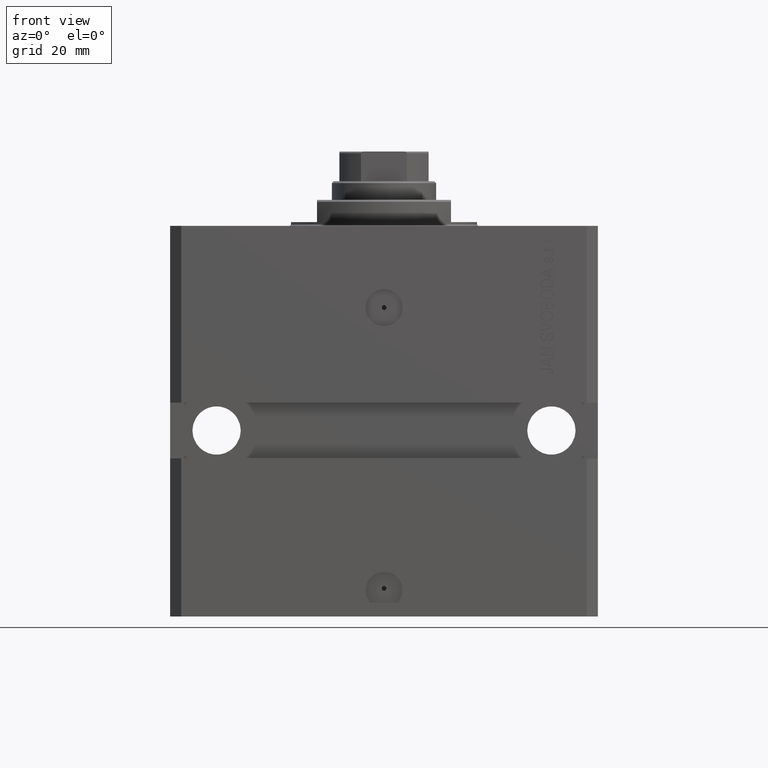
[diagram: clean part render]
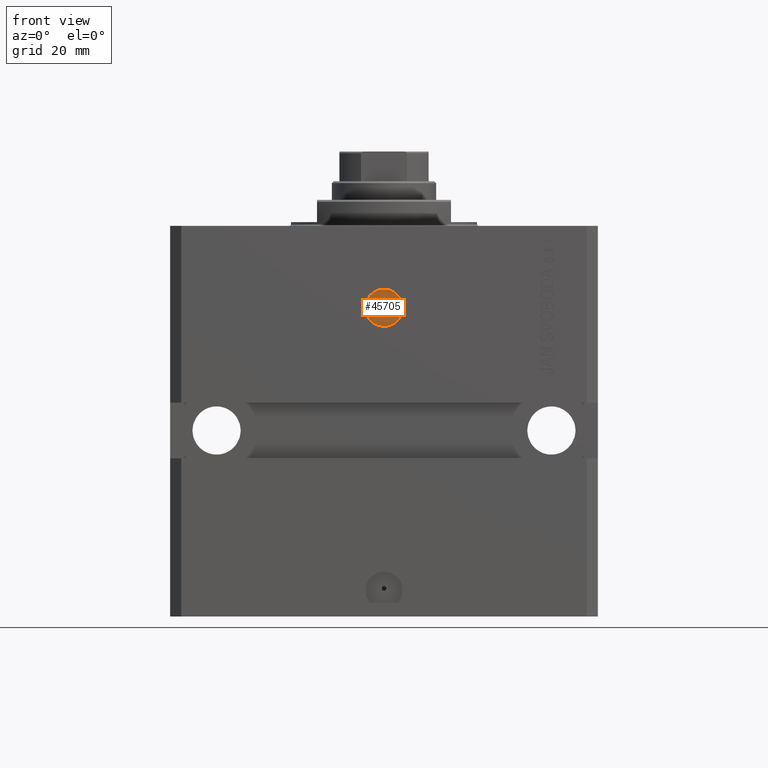
[diagram: same view with one face highlighted and labeled with its STEP entity id]
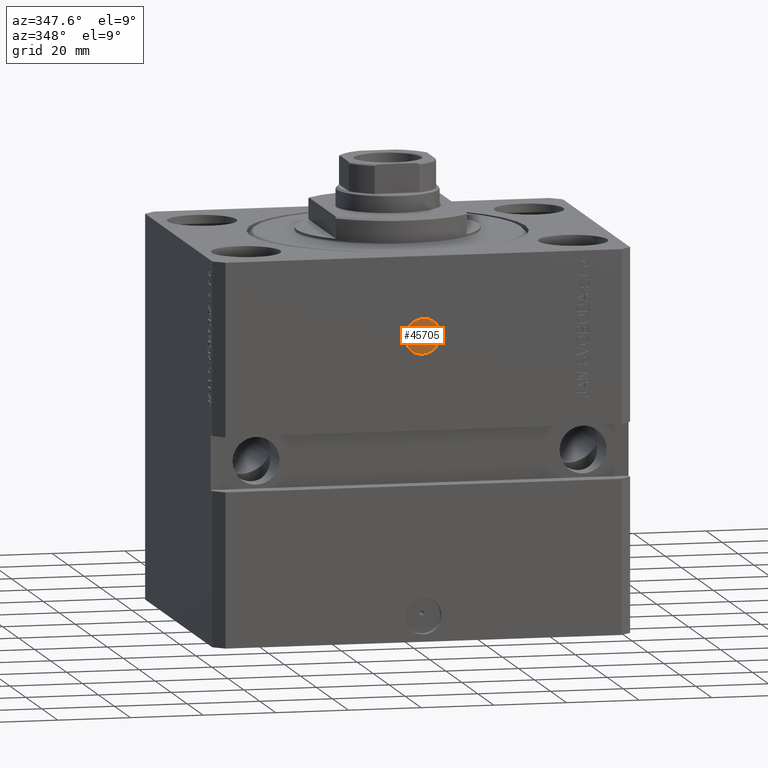
[diagram: same view with one face highlighted and labeled with its STEP entity id]
A machine part, front view. The second image highlights one B-rep face of the part: STEP entity #45705.
A second angle (auxiliary view) of the same face is appended — the face is thin or edge-on in the first view.
In plain terms, the highlighted planar face has unit normal (0, -1, 0).
Its self-contained STEP definition (entity closure, byte-faithful):
#1402 = DIRECTION ( 'NONE',  ( 1.176083712526788232E-16, -1.000000000000000000, 0.000000000000000000 ) ) ;
#1594 = DIRECTION ( 'NONE',  ( 1.176083712526788232E-16, -1.000000000000000000, 0.000000000000000000 ) ) ;
#1609 = AXIS2_PLACEMENT_3D ( 'NONE', #1888, #1402, #31939 ) ;
#1888 = CARTESIAN_POINT ( 'NONE',  ( 5.505906033625877163E-15, -43.09999999999999432, -22.00000000000000000 ) ) ;
#2262 = CIRCLE ( 'NONE', #6187, 0.6250000000000002220 ) ;
#2329 = EDGE_CURVE ( 'NONE', #5010, #3658, #3595, .T. ) ;
#2336 = FACE_BOUND ( 'NONE', #23830, .T. ) ;
#3595 = CIRCLE ( 'NONE', #29556, 5.000000000000002665 ) ;
#3658 = VERTEX_POINT ( 'NONE', #30618 ) ;
#5010 = VERTEX_POINT ( 'NONE', #14760 ) ;
#5768 = DIRECTION ( 'NONE',  ( 1.000000000000000000, 1.176083712526788232E-16, 0.000000000000000000 ) ) ;
#6187 = AXIS2_PLACEMENT_3D ( 'NONE', #29451, #9507, #32656 ) ;
#7343 = VERTEX_POINT ( 'NONE', #31973 ) ;
#7820 = ORIENTED_EDGE ( 'NONE', *, *, #2329, .T. ) ;
#9352 = AXIS2_PLACEMENT_3D ( 'NONE', #13529, #47491, #32485 ) ;
#9507 = DIRECTION ( 'NONE',  ( 1.176083712526788232E-16, -1.000000000000000000, 0.000000000000000000 ) ) ;
#13004 = DIRECTION ( 'NONE',  ( 1.176083712526788232E-16, -1.000000000000000000, 0.000000000000000000 ) ) ;
#13067 = EDGE_CURVE ( 'NONE', #7343, #21732, #2262, .T. ) ;
#13529 = CARTESIAN_POINT ( 'NONE',  ( 5.068920800990455287E-15, -43.09999999999999432, -22.00000000000000000 ) ) ;
#13685 = EDGE_CURVE ( 'NONE', #21732, #7343, #30605, .T. ) ;
#14760 = CARTESIAN_POINT ( 'NONE',  ( -4.999999999999997335, -43.09999999999999432, -22.00000000000000000 ) ) ;
#20935 = EDGE_CURVE ( 'NONE', #3658, #5010, #44094, .T. ) ;
#21732 = VERTEX_POINT ( 'NONE', #22626 ) ;
#22626 = CARTESIAN_POINT ( 'NONE',  ( -0.6249999999999951150, -43.09999999999999432, -22.00000000000000000 ) ) ;
#23830 = EDGE_LOOP ( 'NONE', ( #39677, #39962 ) ) ;
#24404 = ORIENTED_EDGE ( 'NONE', *, *, #20935, .T. ) ;
#24990 = PLANE ( 'NONE',  #25974 ) ;
#25974 = AXIS2_PLACEMENT_3D ( 'NONE', #31399, #1594, #5768 ) ;
#29451 = CARTESIAN_POINT ( 'NONE',  ( 5.068920800990455287E-15, -43.09999999999999432, -22.00000000000000000 ) ) ;
#29556 = AXIS2_PLACEMENT_3D ( 'NONE', #31717, #13004, #36144 ) ;
#30605 = CIRCLE ( 'NONE', #9352, 0.6250000000000002220 ) ;
#30618 = CARTESIAN_POINT ( 'NONE',  ( 5.000000000000007994, -43.09999999999999432, -22.00000000000000000 ) ) ;
#31399 = CARTESIAN_POINT ( 'NONE',  ( 5.505906033625877163E-15, -43.09999999999999432, -22.00000000000000000 ) ) ;
#31717 = CARTESIAN_POINT ( 'NONE',  ( 5.505906033625877163E-15, -43.09999999999999432, -22.00000000000000000 ) ) ;
#31939 = DIRECTION ( 'NONE',  ( 1.000000000000000000, 0.000000000000000000, 0.000000000000000000 ) ) ;
#31973 = CARTESIAN_POINT ( 'NONE',  ( 0.6250000000000053291, -43.09999999999999432, -22.00000000000000000 ) ) ;
#32138 = FACE_OUTER_BOUND ( 'NONE', #34893, .T. ) ;
#32485 = DIRECTION ( 'NONE',  ( 1.000000000000000000, 0.000000000000000000, 0.000000000000000000 ) ) ;
#32656 = DIRECTION ( 'NONE',  ( 1.000000000000000000, 0.000000000000000000, 0.000000000000000000 ) ) ;
#34893 = EDGE_LOOP ( 'NONE', ( #24404, #7820 ) ) ;
#36144 = DIRECTION ( 'NONE',  ( 1.000000000000000000, 0.000000000000000000, 0.000000000000000000 ) ) ;
#39677 = ORIENTED_EDGE ( 'NONE', *, *, #13067, .F. ) ;
#39962 = ORIENTED_EDGE ( 'NONE', *, *, #13685, .F. ) ;
#44094 = CIRCLE ( 'NONE', #1609, 5.000000000000002665 ) ;
#45705 = ADVANCED_FACE ( 'NONE', ( #2336, #32138 ), #24990, .T. ) ;
#47491 = DIRECTION ( 'NONE',  ( 1.176083712526788232E-16, -1.000000000000000000, 0.000000000000000000 ) ) ;